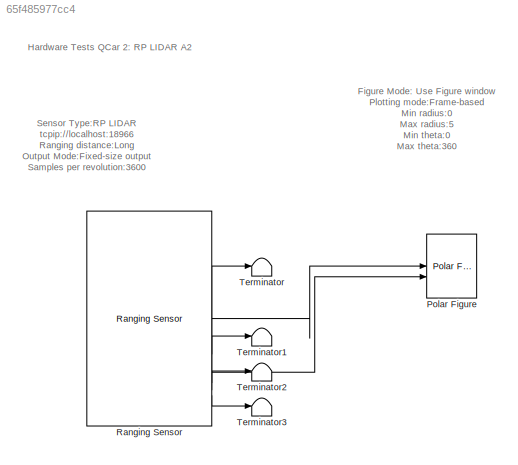
MODEL slx_65f485977cc4
KIND model
CONFIG AbsTol = auto
CONFIG EnableMultiTasking = on
CONFIG FixedStep = 0.002
CONFIG MaxStep = auto
CONFIG MinStep = auto
CONFIG RelTol = 1e-3
CONFIG SampleTimeConstraint = Unconstrained
CONFIG SolverName = FixedStepDiscrete
CONFIG StartTime = 0.0
CONFIG StopTime = inf
BLOCK [Reference] Polar Figure  REF=quarc_library/Sinks/Figures/Polar Figure
  SourceBlock = quarc_library/Sinks/Figures/Polar Figure
  SourceProductName = QUARC Targets
  SourceType = Polar Figure
BLOCK [Reference] Ranging Sensor  REF=quarc_library/Devices/Third-Party/Sensors/Ranging Sensor
  SourceBlock = quarc_library/Devices/Third-Party/Sensors/Ranging Sensor
  SourceProductName = QUARC Targets
  SourceType = Ranging Sensor
BLOCK [Terminator] Terminator
BLOCK [Terminator] Terminator1
BLOCK [Terminator] Terminator2
BLOCK [Terminator] Terminator3
ANNOTATION (root): Hardware Tests QCar 2: RP LIDAR A2
ANNOTATION (root): Figure Mode: Use Figure window Plotting mode:Frame-based Min radius:0 Max radius:5 Min theta:0 Max theta:360 Theta zero location:left Theta direction:clockwise Buffer size:1000 Update rate:1
ANNOTATION (root): Sensor Type:RP LIDAR tcpip://localhost:18966 Ranging distance:Long Output Mode:Fixed-size output Samples per revolution:3600
LINE Ranging Sensor:1 -> Polar Figure:1
LINE Ranging Sensor:2 -> Terminator:1
LINE Ranging Sensor:3 -> Polar Figure:2
LINE Ranging Sensor:4 -> Terminator1:1
LINE Ranging Sensor:5 -> Terminator2:1
LINE Ranging Sensor:6 -> Terminator3:1
